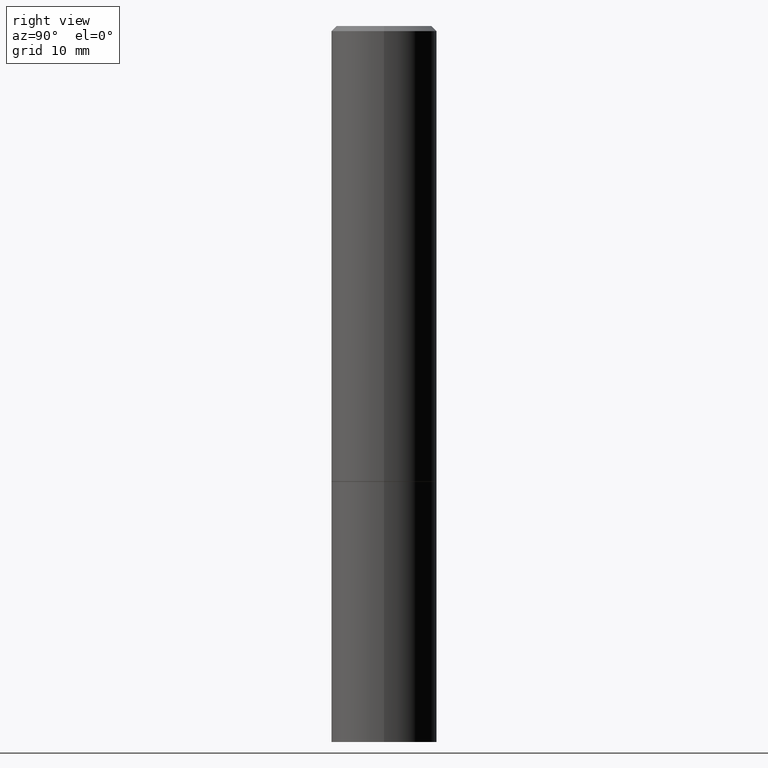
[diagram: clean part render]
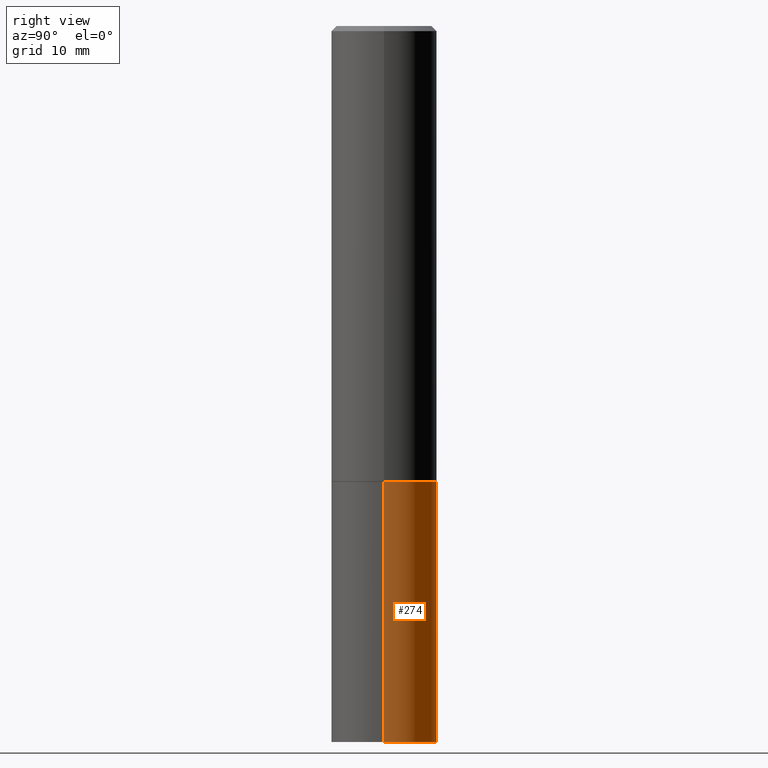
[diagram: same view with one face highlighted and labeled with its STEP entity id]
A machine part, right view. The second image highlights one B-rep face of the part: STEP entity #274.
In plain terms, the highlighted cylindrical surface (partial cylindrical patch) has radius 5.1587 mm, axis along (-0, 0, 1).
Its self-contained STEP definition (entity closure, byte-faithful):
#12 = DIRECTION ( 'NONE',  ( -2.445468806185136597E-29, 3.491481338843145583E-15, 1.000000000000000000 ) ) ;
#13 = CARTESIAN_POINT ( 'NONE',  ( -0.2031000000000000028, -6.412720716068313768E-15, -1.750000000000000000 ) ) ;
#15 = AXIS2_PLACEMENT_3D ( 'NONE', #44, #12, #175 ) ;
#21 = CYLINDRICAL_SURFACE ( 'NONE', #15, 0.2031000000000000028 ) ;
#22 = CARTESIAN_POINT ( 'NONE',  ( 6.725039217009124520E-29, -9.601573681818649859E-15, -2.750000000000000000 ) ) ;
#38 = ORIENTED_EDGE ( 'NONE', *, *, #223, .T. ) ;
#44 = CARTESIAN_POINT ( 'NONE',  ( 0.000000000000000000, 0.000000000000000000, 0.000000000000000000 ) ) ;
#57 = CIRCLE ( 'NONE', #250, 0.2031000000000000028 ) ;
#58 = LINE ( 'NONE', #156, #389 ) ;
#73 = EDGE_LOOP ( 'NONE', ( #38, #252, #230, #133 ) ) ;
#82 = VECTOR ( 'NONE', #330, 39.37007874015748143 ) ;
#97 = DIRECTION ( 'NONE',  ( 1.000000000000000000, -6.982962677686269866E-15, 0.000000000000000000 ) ) ;
#99 = EDGE_CURVE ( 'NONE', #361, #319, #58, .T. ) ;
#103 = CARTESIAN_POINT ( 'NONE',  ( 4.279570410823988484E-29, -6.110092342975504671E-15, -1.750000000000000000 ) ) ;
#116 = VERTEX_POINT ( 'NONE', #335 ) ;
#118 = AXIS2_PLACEMENT_3D ( 'NONE', #103, #369, #97 ) ;
#133 = ORIENTED_EDGE ( 'NONE', *, *, #99, .F. ) ;
#147 = DIRECTION ( 'NONE',  ( -2.445468806185136597E-29, 3.491481338843145583E-15, 1.000000000000000000 ) ) ;
#155 = EDGE_CURVE ( 'NONE', #116, #206, #235, .T. ) ;
#156 = CARTESIAN_POINT ( 'NONE',  ( 0.2031000000000000028, -1.418239719838080775E-15, 9.903515031641546145E-30 ) ) ;
#175 = DIRECTION ( 'NONE',  ( 1.000000000000000000, -6.982962677686266711E-15, 4.876176775795935793E-29 ) ) ;
#190 = CARTESIAN_POINT ( 'NONE',  ( 0.2031000000000000028, -7.528332062813585446E-15, -1.750000000000000000 ) ) ;
#204 = CARTESIAN_POINT ( 'NONE',  ( -0.2031000000000000028, 1.443112296328763497E-15, -9.990357168307714203E-30 ) ) ;
#206 = VERTEX_POINT ( 'NONE', #13 ) ;
#223 = EDGE_CURVE ( 'NONE', #361, #116, #57, .T. ) ;
#230 = ORIENTED_EDGE ( 'NONE', *, *, #342, .F. ) ;
#235 = LINE ( 'NONE', #204, #82 ) ;
#239 = FACE_OUTER_BOUND ( 'NONE', #73, .T. ) ;
#244 = CIRCLE ( 'NONE', #118, 0.2031000000000000028 ) ;
#250 = AXIS2_PLACEMENT_3D ( 'NONE', #22, #147, #260 ) ;
#252 = ORIENTED_EDGE ( 'NONE', *, *, #155, .T. ) ;
#260 = DIRECTION ( 'NONE',  ( 1.000000000000000000, -6.982962677686264344E-15, 0.000000000000000000 ) ) ;
#271 = DIRECTION ( 'NONE',  ( -2.445468806185136877E-29, 3.491481338843145188E-15, 1.000000000000000000 ) ) ;
#274 = ADVANCED_FACE ( 'NONE', ( #239 ), #21, .T. ) ;
#310 = CARTESIAN_POINT ( 'NONE',  ( 0.2030999999999997530, -1.099494082516604752E-14, -2.750000000000000000 ) ) ;
#319 = VERTEX_POINT ( 'NONE', #190 ) ;
#330 = DIRECTION ( 'NONE',  ( -2.445468806185136877E-29, 3.491481338843145188E-15, 1.000000000000000000 ) ) ;
#335 = CARTESIAN_POINT ( 'NONE',  ( -0.2030999999999997530, -8.183333961980571451E-15, -2.750000000000000000 ) ) ;
#342 = EDGE_CURVE ( 'NONE', #319, #206, #244, .T. ) ;
#361 = VERTEX_POINT ( 'NONE', #310 ) ;
#369 = DIRECTION ( 'NONE',  ( -2.445468806185136597E-29, 3.491481338843145583E-15, 1.000000000000000000 ) ) ;
#389 = VECTOR ( 'NONE', #271, 39.37007874015748143 ) ;